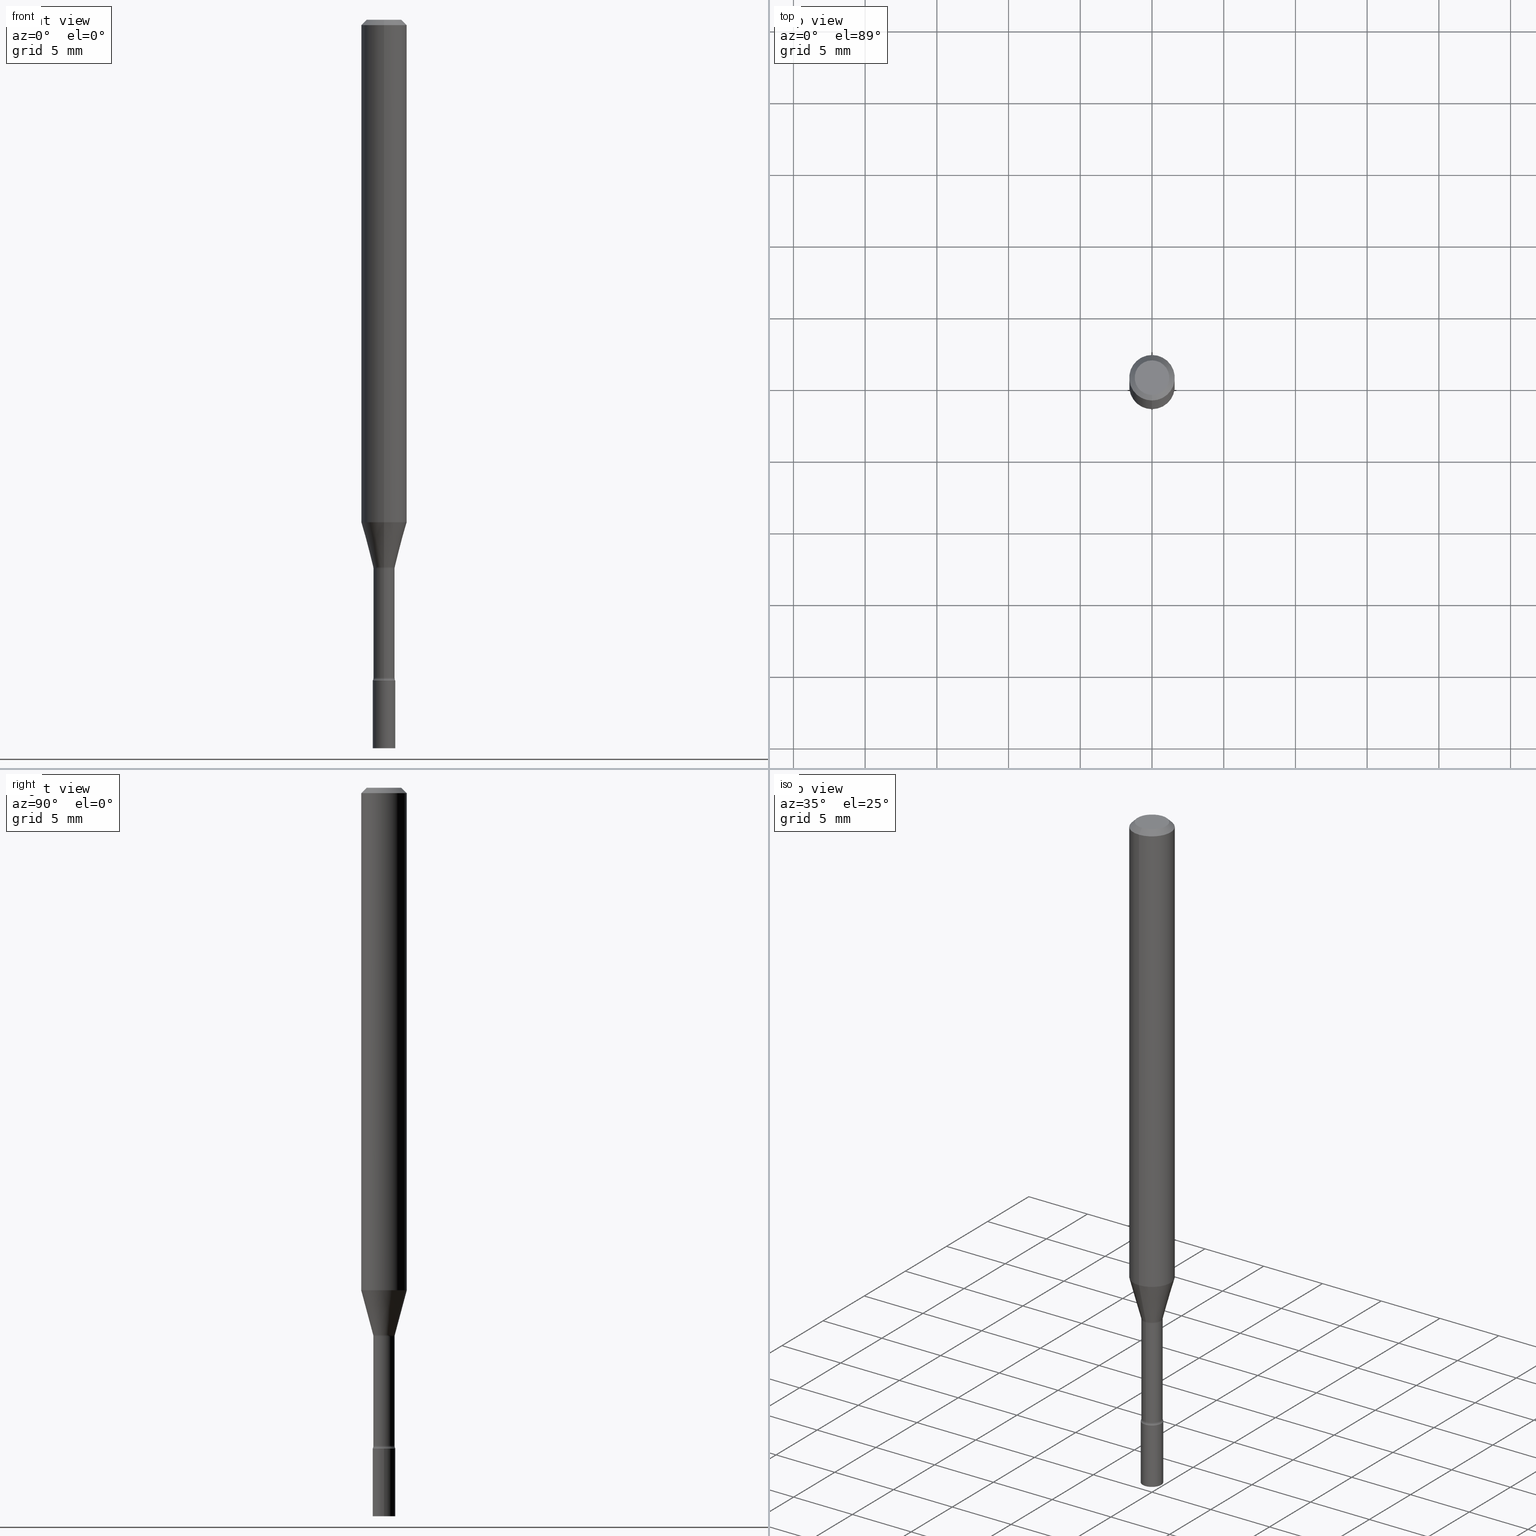
[diagram: canonical four-view strip — front | top / right | iso, engineering-drawing reading convention]
A machine part, canonical four-view strip (front | top / right | iso — engineering-drawing reading convention). The complete STEP part file that produces these views, byte-faithful:
ISO-10303-21;
HEADER;
FILE_DESCRIPTION (( 'STEP AP203' ),
    '1' );
FILE_NAME ('09379.STEP',
    '2024-03-08T23:31:12',
    ( '' ),
    ( '' ),
    'SwSTEP 2.0',
    'SolidWorks 2023',
    '' );
FILE_SCHEMA (( 'CONFIG_CONTROL_DESIGN' ));
ENDSEC;

DATA;
#1 = VERTEX_POINT ( 'NONE', #380 ) ;
#2 = CARTESIAN_POINT ( 'NONE',  ( 3.673319952389542966E-29, -5.244528518811216115E-15, -1.502092501787273271 ) ) ;
#3 = VERTEX_POINT ( 'NONE', #327 ) ;
#4 = DIRECTION ( 'NONE',  ( -6.982962677686265922E-15, -1.000000000000000000, 4.370956789862821150E-15 ) ) ;
#5 = EDGE_CURVE ( 'NONE', #150, #216, #368, .T. ) ;
#6 = CC_DESIGN_PERSON_AND_ORGANIZATION_ASSIGNMENT ( #291, #260, ( #474 ) ) ;
#7 = AXIS2_PLACEMENT_3D ( 'NONE', #347, #103, #153 ) ;
#8 = APPROVAL_PERSON_ORGANIZATION ( #251, #308, #131 ) ;
#9 = ORIENTED_EDGE ( 'NONE', *, *, #220, .T. ) ;
#10 = PLANE ( 'NONE',  #314 ) ;
#11 = EDGE_CURVE ( 'NONE', #339, #500, #39, .T. ) ;
#12 = COORDINATED_UNIVERSAL_TIME_OFFSET ( 5, 0, .BEHIND. ) ;
#13 = DIRECTION ( 'NONE',  ( -2.445468536737133447E-29, 3.491481724708021844E-15, 1.000000000000000000 ) ) ;
#14 = DIRECTION ( 'NONE',  ( -6.982962677686266711E-15, -1.000000000000000000, 0.000000000000000000 ) ) ;
#15 = PERSON_AND_ORGANIZATION ( #504, #512 ) ;
#16 = ORIENTED_EDGE ( 'NONE', *, *, #175, .T. ) ;
#17 = CARTESIAN_POINT ( 'NONE',  ( 4.418432265018427708E-29, -6.308351660805017310E-15, -1.806783525791634704 ) ) ;
#18 = APPROVAL_DATE_TIME ( #185, #43 ) ;
#19 = AXIS2_PLACEMENT_3D ( 'NONE', #476, #253, #396 ) ;
#20 = EDGE_LOOP ( 'NONE', ( #358, #472, #225, #95 ) ) ;
#21 = CARTESIAN_POINT ( 'NONE',  ( 3.682814365644040998E-29, -5.258082867198169507E-15, -1.505974787463811193 ) ) ;
#22 = CARTESIAN_POINT ( 'NONE',  ( -2.071224423039644956E-16, -0.02966111260566922994, -1.502092501787273271 ) ) ;
#23 = CARTESIAN_POINT ( 'NONE',  ( 3.668202805105707334E-31, -5.237222587062043490E-17, -0.01500000000000003067 ) ) ;
#24 = COORDINATED_UNIVERSAL_TIME_OFFSET ( 5, 0, .BEHIND. ) ;
#25 = DIRECTION ( 'NONE',  ( -6.982962677686266711E-15, -1.000000000000000000, 3.491481724708022239E-15 ) ) ;
#26 = CARTESIAN_POINT ( 'NONE',  ( 2.071232074740693438E-16, 0.02915000000000002311, -1.017766922752389249E-16 ) ) ;
#27 = CIRCLE ( 'NONE', #87, 0.06250000000000000000 ) ;
#28 = LOCAL_TIME ( 18, 31, 12.00000000000000000, #24 ) ;
#29 = ADVANCED_FACE ( 'NONE', ( #419 ), #186, .T. ) ;
#30 = LINE ( 'NONE', #418, #362 ) ;
#31 = MANIFOLD_SOLID_BREP ( 'Body-Move/Copy2[2]', #403 ) ;
#32 = CARTESIAN_POINT ( 'NONE',  ( 3.673319952389542966E-29, -5.244528518811216115E-15, -1.502092501787273271 ) ) ;
#33 = DIRECTION ( 'NONE',  ( -2.445468536737133447E-29, 3.491481724708021844E-15, 1.000000000000000000 ) ) ;
#34 = ORIENTED_EDGE ( 'NONE', *, *, #495, .F. ) ;
#35 = VECTOR ( 'NONE', #409, 39.37007874015748143 ) ;
#36 = EDGE_LOOP ( 'NONE', ( #166, #55, #157, #408 ) ) ;
#37 = DIMENSIONAL_EXPONENTS ( 1.000000000000000000, 0.000000000000000000, 0.000000000000000000, 0.000000000000000000, 0.000000000000000000, 0.000000000000000000, 0.000000000000000000 ) ;
#38 = DIRECTION ( 'NONE',  ( -2.445468536737133447E-29, 3.491481724708021844E-15, 1.000000000000000000 ) ) ;
#39 = CIRCLE ( 'NONE', #471, 0.04749999999999999362 ) ;
#40 = CIRCLE ( 'NONE', #192, 0.03099999999999999978 ) ;
#41 = ADVANCED_FACE ( 'NONE', ( #335 ), #340, .F. ) ;
#42 = DIRECTION ( 'NONE',  ( 2.445468536737133447E-29, -3.491481724708021844E-15, -1.000000000000000000 ) ) ;
#43 = APPROVAL ( #376, 'UNSPECIFIED' ) ;
#44 = ORIENTED_EDGE ( 'NONE', *, *, #142, .T. ) ;
#45 = DIRECTION ( 'NONE',  ( 1.000000000000000000, -6.982962677686270655E-15, 0.000000000000000000 ) ) ;
#46 = ORIENTED_EDGE ( 'NONE', *, *, #220, .F. ) ;
#47 = DIRECTION ( 'NONE',  ( -6.982962677686267499E-15, -1.000000000000000000, 0.000000000000000000 ) ) ;
#48 = CIRCLE ( 'NONE', #486, 0.01500000000000001853 ) ;
#49 = ORIENTED_EDGE ( 'NONE', *, *, #73, .T. ) ;
#50 =( CONVERSION_BASED_UNIT ( 'INCH', #197 ) LENGTH_UNIT ( ) NAMED_UNIT ( #37 ) );
#51 = DIRECTION ( 'NONE',  ( -6.982962677686267499E-15, -1.000000000000000000, 0.000000000000000000 ) ) ;
#52 =( NAMED_UNIT ( * ) PLANE_ANGLE_UNIT ( ) SI_UNIT ( $, .RADIAN. ) );
#53 = ADVANCED_FACE ( 'NONE', ( #503 ), #300, .T. ) ;
#54 = LINE ( 'NONE', #334, #205 ) ;
#55 = ORIENTED_EDGE ( 'NONE', *, *, #203, .T. ) ;
#56 = CIRCLE ( 'NONE', #411, 0.02966111260566398414 ) ;
#57 = AXIS2_PLACEMENT_3D ( 'NONE', #459, #255, #125 ) ;
#58 = ORIENTED_EDGE ( 'NONE', *, *, #163, .T. ) ;
#59 = FACE_OUTER_BOUND ( 'NONE', #360, .T. ) ;
#60 = DIRECTION ( 'NONE',  ( -2.445468806185136597E-29, 3.491481338843145583E-15, 1.000000000000000000 ) ) ;
#61 = DIRECTION ( 'NONE',  ( -2.445468536737133447E-29, 3.491481724708021844E-15, 1.000000000000000000 ) ) ;
#62 = CARTESIAN_POINT ( 'NONE',  ( 3.682814365644040998E-29, -5.258082867198169507E-15, -1.505974787463811193 ) ) ;
#63 = FACE_OUTER_BOUND ( 'NONE', #444, .T. ) ;
#64 = ORIENTED_EDGE ( 'NONE', *, *, #175, .F. ) ;
#65 = CIRCLE ( 'NONE', #276, 0.02915000000000004046 ) ;
#66 = EDGE_CURVE ( 'NONE', #183, #211, #385, .T. ) ;
#67 = FACE_OUTER_BOUND ( 'NONE', #439, .T. ) ;
#68 = ORIENTED_EDGE ( 'NONE', *, *, #421, .T. ) ;
#69 = DIRECTION ( 'NONE',  ( -2.438088387897960049E-29, 3.491481338843145188E-15, 1.000000000000000000 ) ) ;
#70 = EDGE_LOOP ( 'NONE', ( #164, #259, #296, #333 ) ) ;
#71 = LOCAL_TIME ( 18, 31, 12.00000000000000000, #460 ) ;
#72 = DIRECTION ( 'NONE',  ( -2.445468536737133447E-29, 3.491481724708021844E-15, 1.000000000000000000 ) ) ;
#73 = EDGE_CURVE ( 'NONE', #150, #413, #56, .T. ) ;
#74 = ORIENTED_EDGE ( 'NONE', *, *, #353, .T. ) ;
#75 = CARTESIAN_POINT ( 'NONE',  ( 0.000000000000000000, 0.000000000000000000, 0.000000000000000000 ) ) ;
#76 = AXIS2_PLACEMENT_3D ( 'NONE', #32, #61, #336 ) ;
#77 = ADVANCED_FACE ( 'NONE', ( #492 ), #506, .F. ) ;
#78 = PRODUCT_DEFINITION_FORMATION_WITH_SPECIFIED_SOURCE ( 'ANY', '', #258, .NOT_KNOWN. ) ;
#79 = ORIENTED_EDGE ( 'NONE', *, *, #491, .T. ) ;
#80 = ADVANCED_FACE ( 'NONE', ( #344 ), #106, .T. ) ;
#81 = ORIENTED_EDGE ( 'NONE', *, *, #345, .F. ) ;
#82 = PERSON_AND_ORGANIZATION ( #504, #512 ) ;
#83 = FACE_OUTER_BOUND ( 'NONE', #487, .T. ) ;
#84 = ORIENTED_EDGE ( 'NONE', *, *, #491, .F. ) ;
#85 = CARTESIAN_POINT ( 'NONE',  ( -0.03099999999999999978, -6.437986665088246838E-15, -2.000000000000000000 ) ) ;
#86 = MECHANICAL_CONTEXT ( 'NONE', #236, 'mechanical' ) ;
#87 = AXIS2_PLACEMENT_3D ( 'NONE', #184, #89, #4 ) ;
#88 = CARTESIAN_POINT ( 'NONE',  ( 0.000000000000000000, 0.000000000000000000, 0.000000000000000000 ) ) ;
#89 = DIRECTION ( 'NONE',  ( -2.445468536737133447E-29, 3.491481724708021844E-15, 1.000000000000000000 ) ) ;
#90 = APPROVAL_DATE_TIME ( #137, #119 ) ;
#91 = CARTESIAN_POINT ( 'NONE',  ( 7.070801462615394512E-46, -1.009523276005824331E-31, -2.891389259928738292E-17 ) ) ;
#92 = CARTESIAN_POINT ( 'NONE',  ( -4.364351673553580935E-16, -0.06250000000000484335, -1.379536105567578108 ) ) ;
#93 = DIRECTION ( 'NONE',  ( 0.000000000000000000, 0.000000000000000000, 1.000000000000000000 ) ) ;
#94 = CARTESIAN_POINT ( 'NONE',  ( 0.03099999999999999978, -2.164718430082742572E-16, 1.511614800496739984E-30 ) ) ;
#95 = ORIENTED_EDGE ( 'NONE', *, *, #270, .F. ) ;
#96 = DIRECTION ( 'NONE',  ( -2.445468536737133447E-29, 3.491481724708021844E-15, 1.000000000000000000 ) ) ;
#97 = SECURITY_CLASSIFICATION_LEVEL ( 'unclassified' ) ;
#98 = ORIENTED_EDGE ( 'NONE', *, *, #73, .F. ) ;
#99 = DIRECTION ( 'NONE',  ( -2.445468536737133447E-29, 3.491481724708021844E-15, 1.000000000000000000 ) ) ;
#100 = AXIS2_PLACEMENT_3D ( 'NONE', #167, #321, #47 ) ;
#101 = LOCAL_TIME ( 18, 31, 12.00000000000000000, #12 ) ;
#102 = CARTESIAN_POINT ( 'NONE',  ( 0.000000000000000000, 0.000000000000000000, 0.000000000000000000 ) ) ;
#103 = DIRECTION ( 'NONE',  ( -2.445468536737133447E-29, 3.491481724708021844E-15, 1.000000000000000000 ) ) ;
#104 = EDGE_CURVE ( 'NONE', #413, #150, #160, .T. ) ;
#105 = VERTEX_POINT ( 'NONE', #332 ) ;
#106 = CYLINDRICAL_SURFACE ( 'NONE', #7, 0.06250000000000000000 ) ;
#107 = DIRECTION ( 'NONE',  ( -2.445468536737133447E-29, 3.491481724708021844E-15, 1.000000000000000000 ) ) ;
#108 = AXIS2_PLACEMENT_3D ( 'NONE', #475, #99, #25 ) ;
#109 = DIRECTION ( 'NONE',  ( -2.445468536737133447E-29, 3.491481724708021844E-15, 1.000000000000000000 ) ) ;
#110 = CARTESIAN_POINT ( 'NONE',  ( 2.202682480856754541E-16, 0.03099999999999368192, -1.813999999999999835 ) ) ;
#111 = EDGE_LOOP ( 'NONE', ( #121, #422 ) ) ;
#112 = CYLINDRICAL_SURFACE ( 'NONE', #151, 0.02915000000000002311 ) ;
#113 = VERTEX_POINT ( 'NONE', #110 ) ;
#114 = FACE_OUTER_BOUND ( 'NONE', #221, .T. ) ;
#115 = ORIENTED_EDGE ( 'NONE', *, *, #228, .T. ) ;
#116 = DIRECTION ( 'NONE',  ( -6.982962677686265922E-15, -1.000000000000000000, 0.000000000000000000 ) ) ;
#117 = DESIGN_CONTEXT ( 'detailed design', #343, 'design' ) ;
#118 = EDGE_CURVE ( 'NONE', #483, #3, #30, .T. ) ;
#119 = APPROVAL ( #285, 'UNSPECIFIED' ) ;
#120 = CC_DESIGN_APPROVAL ( #308, ( #402 ) ) ;
#121 = ORIENTED_EDGE ( 'NONE', *, *, #66, .F. ) ;
#122 = DIRECTION ( 'NONE',  ( -1.000000000000000000, 6.982962677686265922E-15, -4.883557194083112340E-29 ) ) ;
#123 = CALENDAR_DATE ( 2024, 8, 3 ) ;
#124 = PRODUCT_RELATED_PRODUCT_CATEGORY ( 'detail', '', ( #258 ) ) ;
#125 = DIRECTION ( 'NONE',  ( -6.982962677686265922E-15, -1.000000000000000000, 4.370956789862821150E-15 ) ) ;
#126 = UNCERTAINTY_MEASURE_WITH_UNIT (LENGTH_MEASURE( 1.000000000000000082E-05 ), #50, 'distance_accuracy_value', 'NONE');
#127 = DATE_AND_TIME ( #494, #71 ) ;
#128 = CC_DESIGN_DATE_AND_TIME_ASSIGNMENT ( #127, #188, ( #402 ) ) ;
#129 = ORIENTED_EDGE ( 'NONE', *, *, #201, .F. ) ;
#130 = FACE_OUTER_BOUND ( 'NONE', #397, .T. ) ;
#131 = APPROVAL_ROLE ( '' ) ;
#132 = AXIS2_PLACEMENT_3D ( 'NONE', #102, #265, #254 ) ;
#133 = DIRECTION ( 'NONE',  ( -6.982962677686265922E-15, -1.000000000000000000, 3.483106191921935554E-15 ) ) ;
#134 = CONICAL_SURFACE ( 'NONE', #399, 0.06250000000000000000, 0.7853981633974483900 ) ;
#135 = DIRECTION ( 'NONE',  ( -6.982962677686265922E-15, -1.000000000000000000, 0.000000000000000000 ) ) ;
#136 = CARTESIAN_POINT ( 'NONE',  ( 3.682813959862141921E-29, -5.258083448300944094E-15, -1.505974787463811193 ) ) ;
#137 = DATE_AND_TIME ( #123, #101 ) ;
#138 = LINE ( 'NONE', #94, #310 ) ;
#139 = CARTESIAN_POINT ( 'NONE',  ( 4.440892098500961428E-16, 0.06249999999999514971, -1.379536105567578552 ) ) ;
#140 = DIRECTION ( 'NONE',  ( -1.807323732225328562E-15, -0.2588190451025179639, 0.9659258262890690894 ) ) ;
#141 = PERSON_AND_ORGANIZATION ( #504, #512 ) ;
#142 = EDGE_CURVE ( 'NONE', #1, #105, #452, .T. ) ;
#143 = CC_DESIGN_PERSON_AND_ORGANIZATION_ASSIGNMENT ( #82, #297, ( #402 ) ) ;
#144 = FACE_OUTER_BOUND ( 'NONE', #247, .T. ) ;
#145 = CARTESIAN_POINT ( 'NONE',  ( 3.840629472727447874E-16, 0.04749999999999999362, -1.947592745229184119E-16 ) ) ;
#146 = CARTESIAN_POINT ( 'NONE',  ( 4.418432751852640684E-29, -6.308350963630715621E-15, -1.806783525791634704 ) ) ;
#147 = CIRCLE ( 'NONE', #240, 0.02915000000000000577 ) ;
#148 = DIRECTION ( 'NONE',  ( -2.445468536737133447E-29, 3.491481724708021844E-15, 1.000000000000000000 ) ) ;
#149 = DIRECTION ( 'NONE',  ( 1.000000000000000000, -6.982962677686265922E-15, 4.876176775795935793E-29 ) ) ;
#150 = VERTEX_POINT ( 'NONE', #294 ) ;
#151 = AXIS2_PLACEMENT_3D ( 'NONE', #75, #72, #400 ) ;
#152 = CIRCLE ( 'NONE', #100, 0.01500000000000001853 ) ;
#153 = DIRECTION ( 'NONE',  ( -6.982962677686265922E-15, -1.000000000000000000, 3.491481724708021450E-15 ) ) ;
#154 = CARTESIAN_POINT ( 'NONE',  ( -2.035533620545107573E-16, -0.02915000000000635139, -1.806783525791634704 ) ) ;
#155 = ORIENTED_EDGE ( 'NONE', *, *, #203, .F. ) ;
#156 = DIRECTION ( 'NONE',  ( 2.445468536737133447E-29, -3.491481724708021844E-15, -1.000000000000000000 ) ) ;
#157 = ORIENTED_EDGE ( 'NONE', *, *, #425, .T. ) ;
#158 = CC_DESIGN_PERSON_AND_ORGANIZATION_ASSIGNMENT ( #463, #174, ( #258 ) ) ;
#159 = FACE_OUTER_BOUND ( 'NONE', #231, .T. ) ;
#160 = CIRCLE ( 'NONE', #19, 0.02966111260566398414 ) ;
#161 = CYLINDRICAL_SURFACE ( 'NONE', #519, 0.06250000000000000000 ) ;
#162 = AXIS2_PLACEMENT_3D ( 'NONE', #484, #309, #346 ) ;
#163 = EDGE_CURVE ( 'NONE', #216, #1, #54, .T. ) ;
#164 = ORIENTED_EDGE ( 'NONE', *, *, #286, .T. ) ;
#165 = FACE_OUTER_BOUND ( 'NONE', #283, .T. ) ;
#166 = ORIENTED_EDGE ( 'NONE', *, *, #228, .F. ) ;
#167 = CARTESIAN_POINT ( 'NONE',  ( -3.082978022198118430E-16, -0.04415000000000526142, -1.505974787463810971 ) ) ;
#168 = CIRCLE ( 'NONE', #190, 0.01500000000000001853 ) ;
#169 = CONICAL_SURFACE ( 'NONE', #467, 0.06250000000000000000, 0.7853981633974483900 ) ;
#170 = FACE_OUTER_BOUND ( 'NONE', #406, .T. ) ;
#171 = DIRECTION ( 'NONE',  ( 4.937700262164548042E-15, 0.7071067811865451302, -0.7071067811865499042 ) ) ;
#172 = ORIENTED_EDGE ( 'NONE', *, *, #495, .T. ) ;
#173 = CARTESIAN_POINT ( 'NONE',  ( 0.03099999999999999978, -6.550018991669739348E-15, -1.813999999999999835 ) ) ;
#174 = PERSON_AND_ORGANIZATION_ROLE ( 'design_owner' ) ;
#175 = EDGE_CURVE ( 'NONE', #183, #305, #138, .T. ) ;
#176 = DIRECTION ( 'NONE',  ( -6.982962677686265922E-15, -1.000000000000000000, 3.491481724708021844E-15 ) ) ;
#177 = CALENDAR_DATE ( 2024, 8, 3 ) ;
#178 = ORIENTED_EDGE ( 'NONE', *, *, #235, .F. ) ;
#179 = DIRECTION ( 'NONE',  ( -2.445468536737133447E-29, 3.491481724708021844E-15, 1.000000000000000000 ) ) ;
#180 = APPROVAL_DATE_TIME ( #498, #308 ) ;
#181 = VECTOR ( 'NONE', #171, 39.37007874015748143 ) ;
#182 = ADVANCED_FACE ( 'NONE', ( #144 ), #112, .T. ) ;
#183 = VERTEX_POINT ( 'NONE', #518 ) ;
#184 = CARTESIAN_POINT ( 'NONE',  ( 3.373612141458389252E-29, -4.816625101164076707E-15, -1.379536105567578330 ) ) ;
#185 = DATE_AND_TIME ( #177, #28 ) ;
#186 = CYLINDRICAL_SURFACE ( 'NONE', #398, 0.03099999999999999978 ) ;
#187 = ADVANCED_FACE ( 'NONE', ( #208 ), #161, .T. ) ;
#188 = DATE_TIME_ROLE ( 'creation_date' ) ;
#189 = ORIENTED_EDGE ( 'NONE', *, *, #379, .F. ) ;
#190 = AXIS2_PLACEMENT_3D ( 'NONE', #290, #488, #219 ) ;
#191 = DIRECTION ( 'NONE',  ( -2.445468536737133447E-29, 3.491481724708022239E-15, 1.000000000000000000 ) ) ;
#192 = AXIS2_PLACEMENT_3D ( 'NONE', #349, #306, #432 ) ;
#193 = DIRECTION ( 'NONE',  ( 6.982962677686265922E-15, 1.000000000000000000, -3.491481724708022239E-15 ) ) ;
#194 = DIRECTION ( 'NONE',  ( 1.000000000000000000, -6.982962677686270655E-15, 0.000000000000000000 ) ) ;
#195 = ORIENTED_EDGE ( 'NONE', *, *, #252, .F. ) ;
#196 = DIRECTION ( 'NONE',  ( -2.445468806185136597E-29, 3.491481338843145583E-15, 1.000000000000000000 ) ) ;
#197 = LENGTH_MEASURE_WITH_UNIT ( LENGTH_MEASURE( 0.02539999999999999897 ), #451 );
#198 = CIRCLE ( 'NONE', #485, 0.04749999999999999362 ) ;
#199 = ADVANCED_FACE ( 'NONE', ( #114 ), #440, .T. ) ;
#200 = AXIS2_PLACEMENT_3D ( 'NONE', #375, #122, #51 ) ;
#201 = EDGE_CURVE ( 'NONE', #500, #339, #198, .T. ) ;
#202 = ORIENTED_EDGE ( 'NONE', *, *, #213, .F. ) ;
#203 = EDGE_CURVE ( 'NONE', #434, #113, #168, .T. ) ;
#204 = CARTESIAN_POINT ( 'NONE',  ( 4.364351673553919652E-16, 0.06249999999999995143, -0.01500000000000024751 ) ) ;
#205 = VECTOR ( 'NONE', #499, 39.37007874015748143 ) ;
#206 = VECTOR ( 'NONE', #191, 39.37007874015748143 ) ;
#207 = ORIENTED_EDGE ( 'NONE', *, *, #5, .F. ) ;
#208 = FACE_OUTER_BOUND ( 'NONE', #433, .T. ) ;
#209 = ORIENTED_EDGE ( 'NONE', *, *, #282, .T. ) ;
#210 = DIRECTION ( 'NONE',  ( -2.445468806185136597E-29, 3.491481338843145583E-15, 1.000000000000000000 ) ) ;
#211 = VERTEX_POINT ( 'NONE', #85 ) ;
#212 = DIRECTION ( 'NONE',  ( -6.982962677686265922E-15, -1.000000000000000000, 0.000000000000000000 ) ) ;
#213 = EDGE_CURVE ( 'NONE', #211, #405, #369, .T. ) ;
#214 = PERSON_AND_ORGANIZATION ( #504, #512 ) ;
#215 = CIRCLE ( 'NONE', #507, 0.03099999999999999978 ) ;
#216 = VERTEX_POINT ( 'NONE', #92 ) ;
#217 = CARTESIAN_POINT ( 'NONE',  ( 4.436080414419837365E-29, -6.333547148661465016E-15, -1.813999999999999835 ) ) ;
#218 = DIRECTION ( 'NONE',  ( 1.000000000000000000, -6.982962677686270655E-15, 0.000000000000000000 ) ) ;
#219 = DIRECTION ( 'NONE',  ( 7.105427357601001859E-15, 1.000000000000000000, 0.000000000000000000 ) ) ;
#220 = EDGE_CURVE ( 'NONE', #500, #1, #501, .T. ) ;
#221 = EDGE_LOOP ( 'NONE', ( #49, #364, #465, #207 ) ) ;
#222 = CALENDAR_DATE ( 2024, 8, 3 ) ;
#223 = AXIS2_PLACEMENT_3D ( 'NONE', #373, #93, #244 ) ;
#224 = AXIS2_PLACEMENT_3D ( 'NONE', #470, #69, #149 ) ;
#225 = ORIENTED_EDGE ( 'NONE', *, *, #5, .T. ) ;
#226 = CARTESIAN_POINT ( 'NONE',  ( 3.673319952389542966E-29, -5.244528518811216115E-15, -1.502092501787273271 ) ) ;
#227 = LINE ( 'NONE', #229, #430 ) ;
#228 = EDGE_CURVE ( 'NONE', #434, #483, #301, .T. ) ;
#229 = CARTESIAN_POINT ( 'NONE',  ( 2.107548809652055165E-16, 0.02966111260565873833, -1.502092501787273271 ) ) ;
#230 = CIRCLE ( 'NONE', #386, 0.02915000000000000577 ) ;
#231 = EDGE_LOOP ( 'NONE', ( #209, #79 ) ) ;
#232 = EDGE_CURVE ( 'NONE', #483, #320, #331, .T. ) ;
#233 = ORIENTED_EDGE ( 'NONE', *, *, #437, .T. ) ;
#234 = AXIS2_PLACEMENT_3D ( 'NONE', #426, #60, #218 ) ;
#235 = EDGE_CURVE ( 'NONE', #320, #113, #302, .T. ) ;
#236 = APPLICATION_CONTEXT ( 'configuration controlled 3d designs of mechanical parts and assemblies' ) ;
#237 = CC_DESIGN_PERSON_AND_ORGANIZATION_ASSIGNMENT ( #141, #490, ( #78 ) ) ;
#238 = AXIS2_PLACEMENT_3D ( 'NONE', #62, #469, #387 ) ;
#239 = ORIENTED_EDGE ( 'NONE', *, *, #118, .T. ) ;
#240 = AXIS2_PLACEMENT_3D ( 'NONE', #517, #107, #391 ) ;
#241 = PLANE ( 'NONE',  #162 ) ;
#242 = ORIENTED_EDGE ( 'NONE', *, *, #235, .T. ) ;
#243 = ORIENTED_EDGE ( 'NONE', *, *, #425, .F. ) ;
#244 = DIRECTION ( 'NONE',  ( 1.000000000000000000, 0.000000000000000000, 0.000000000000000000 ) ) ;
#245 = CARTESIAN_POINT ( 'NONE',  ( 3.668202805105707334E-31, -5.237222587062043490E-17, -0.01500000000000003067 ) ) ;
#246 = ADVANCED_FACE ( 'NONE', ( #130 ), #356, .F. ) ;
#247 = EDGE_LOOP ( 'NONE', ( #268, #115, #239, #449 ) ) ;
#248 = DIRECTION ( 'NONE',  ( -1.000000000000000000, 6.982962677686265922E-15, -4.876176775795935793E-29 ) ) ;
#249 = CIRCLE ( 'NONE', #57, 0.06250000000000000000 ) ;
#250 = ORIENTED_EDGE ( 'NONE', *, *, #118, .F. ) ;
#251 = PERSON_AND_ORGANIZATION ( #504, #512 ) ;
#252 = EDGE_CURVE ( 'NONE', #413, #287, #48, .T. ) ;
#253 = DIRECTION ( 'NONE',  ( -2.445468536737133447E-29, 3.491481724708021844E-15, 1.000000000000000000 ) ) ;
#254 = DIRECTION ( 'NONE',  ( 1.000000000000000000, -6.982962677686266711E-15, 4.876176775795935232E-29 ) ) ;
#255 = DIRECTION ( 'NONE',  ( -2.445468536737133447E-29, 3.491481724708021844E-15, 1.000000000000000000 ) ) ;
#256 = CARTESIAN_POINT ( 'NONE',  ( 2.136957277798946103E-16, 0.02914999999999373301, -1.806783525791634704 ) ) ;
#257 =( NAMED_UNIT ( * ) SI_UNIT ( $, .STERADIAN. ) SOLID_ANGLE_UNIT ( ) );
#258 = PRODUCT ( '09379', '09379', '', ( #86 ) ) ;
#259 = ORIENTED_EDGE ( 'NONE', *, *, #278, .T. ) ;
#260 = PERSON_AND_ORGANIZATION_ROLE ( 'classification_officer' ) ;
#261 = ORIENTED_EDGE ( 'NONE', *, *, #213, .T. ) ;
#262 = AXIS2_PLACEMENT_3D ( 'NONE', #21, #284, #176 ) ;
#263 = CARTESIAN_POINT ( 'NONE',  ( -2.164718430082299331E-16, -0.03100000000000634887, -1.813999999999999835 ) ) ;
#264 = PLANE ( 'NONE',  #271 ) ;
#265 = DIRECTION ( 'NONE',  ( -2.445468806185136597E-29, 3.491481338843145583E-15, 1.000000000000000000 ) ) ;
#266 = CARTESIAN_POINT ( 'NONE',  ( 3.274220454076509529E-16, 0.02966111260565873833, -1.502092501787273271 ) ) ;
#267 = EDGE_CURVE ( 'NONE', #287, #3, #230, .T. ) ;
#268 = ORIENTED_EDGE ( 'NONE', *, *, #421, .F. ) ;
#269 = CARTESIAN_POINT ( 'NONE',  ( 4.436079925641159659E-29, -6.333547848620351038E-15, -1.813999999999999835 ) ) ;
#270 = EDGE_CURVE ( 'NONE', #468, #216, #249, .T. ) ;
#271 = AXIS2_PLACEMENT_3D ( 'NONE', #509, #388, #193 ) ;
#272 = DIRECTION ( 'NONE',  ( 1.839019923739598738E-15, 0.2588190451025247363, 0.9659258262890673130 ) ) ;
#273 = CARTESIAN_POINT ( 'NONE',  ( 3.668202805105707334E-31, -5.237222587062043490E-17, -0.01500000000000003067 ) ) ;
#274 = ORIENTED_EDGE ( 'NONE', *, *, #66, .T. ) ;
#275 = CLOSED_SHELL ( 'NONE', ( #53, #508, #29, #313 ) ) ;
#276 = AXIS2_PLACEMENT_3D ( 'NONE', #350, #109, #510 ) ;
#277 = CARTESIAN_POINT ( 'NONE',  ( -3.773273898774340269E-16, -0.04749999999999999362, 1.369314893243436584E-16 ) ) ;
#278 = EDGE_CURVE ( 'NONE', #468, #105, #420, .T. ) ;
#279 = ORIENTED_EDGE ( 'NONE', *, *, #282, .F. ) ;
#280 = LOCAL_TIME ( 18, 31, 12.00000000000000000, #330 ) ;
#281 = EDGE_LOOP ( 'NONE', ( #274, #261, #279, #64 ) ) ;
#282 = EDGE_CURVE ( 'NONE', #305, #405, #520, .T. ) ;
#283 = EDGE_LOOP ( 'NONE', ( #155, #189, #289, #242 ) ) ;
#284 = DIRECTION ( 'NONE',  ( -2.445468536737133447E-29, 3.491481724708021844E-15, 1.000000000000000000 ) ) ;
#285 = APPROVAL_STATUS ( 'not_yet_approved' ) ;
#286 = EDGE_CURVE ( 'NONE', #216, #468, #27, .T. ) ;
#287 = VERTEX_POINT ( 'NONE', #288 ) ;
#288 = CARTESIAN_POINT ( 'NONE',  ( 2.071232074741134953E-16, 0.02914999999999474956, -1.505974787463811193 ) ) ;
#289 = ORIENTED_EDGE ( 'NONE', *, *, #232, .T. ) ;
#290 = CARTESIAN_POINT ( 'NONE',  ( 3.137046178381287658E-16, 0.04414999999999374980, -1.806783525791634926 ) ) ;
#291 = PERSON_AND_ORGANIZATION ( #504, #512 ) ;
#292 = TOROIDAL_SURFACE ( 'NONE', #412, 0.04415000000000005725, 0.01500000000000001853 ) ;
#293 = LOCAL_TIME ( 18, 31, 12.00000000000000000, #323 ) ;
#294 = CARTESIAN_POINT ( 'NONE',  ( -2.071224423039644956E-16, -0.02966111260566922994, -1.502092501787273271 ) ) ;
#295 = DIRECTION ( 'NONE',  ( 6.982962677686265922E-15, 1.000000000000000000, -3.483106191921935554E-15 ) ) ;
#296 = ORIENTED_EDGE ( 'NONE', *, *, #142, .F. ) ;
#297 = PERSON_AND_ORGANIZATION_ROLE ( 'creator' ) ;
#298 = DIRECTION ( 'NONE',  ( -6.982962677686266711E-15, -1.000000000000000000, 3.491481724708022633E-15 ) ) ;
#299 = APPROVAL_ROLE ( '' ) ;
#300 = CYLINDRICAL_SURFACE ( 'NONE', #132, 0.03099999999999999978 ) ;
#301 = CIRCLE ( 'NONE', #453, 0.02915000000000004046 ) ;
#302 = CIRCLE ( 'NONE', #363, 0.03099999999999999978 ) ;
#303 = EDGE_CURVE ( 'NONE', #150, #3, #152, .T. ) ;
#304 = CARTESIAN_POINT ( 'NONE',  ( 3.668202805105707334E-31, -5.237222587062043490E-17, -0.01500000000000003067 ) ) ;
#305 = VERTEX_POINT ( 'NONE', #173 ) ;
#306 = DIRECTION ( 'NONE',  ( -2.445468806185136597E-29, 3.491481338843145583E-15, 1.000000000000000000 ) ) ;
#307 = DIRECTION ( 'NONE',  ( -6.982962677686265922E-15, -1.000000000000000000, 3.483106191921935554E-15 ) ) ;
#308 = APPROVAL ( #382, 'UNSPECIFIED' ) ;
#309 = DIRECTION ( 'NONE',  ( -2.445468536737133167E-29, 3.491481724708022239E-15, 1.000000000000000000 ) ) ;
#310 = VECTOR ( 'NONE', #502, 39.37007874015748143 ) ;
#311 = ORIENTED_EDGE ( 'NONE', *, *, #11, .T. ) ;
#312 = ORIENTED_EDGE ( 'NONE', *, *, #267, .T. ) ;
#313 = ADVANCED_FACE ( 'NONE', ( #365 ), #10, .T. ) ;
#314 = AXIS2_PLACEMENT_3D ( 'NONE', #322, #450, #248 ) ;
#315 = CARTESIAN_POINT ( 'NONE',  ( 0.000000000000000000, 0.000000000000000000, 0.000000000000000000 ) ) ;
#316 = ADVANCED_FACE ( 'NONE', ( #59 ), #134, .T. ) ;
#317 = ORIENTED_EDGE ( 'NONE', *, *, #437, .F. ) ;
#318 = DIRECTION ( 'NONE',  ( -2.445468536737133447E-29, 3.491481724708021844E-15, 1.000000000000000000 ) ) ;
#319 = ADVANCED_FACE ( 'NONE', ( #170 ), #241, .F. ) ;
#320 = VERTEX_POINT ( 'NONE', #263 ) ;
#321 = DIRECTION ( 'NONE',  ( -1.000000000000000000, 6.982962677686265922E-15, -4.883557194083112340E-29 ) ) ;
#322 = CARTESIAN_POINT ( 'NONE',  ( 2.164718430083231419E-16, 0.03099999999999301578, -2.000000000000000000 ) ) ;
#323 = COORDINATED_UNIVERSAL_TIME_OFFSET ( 5, 0, .BEHIND. ) ;
#324 = DIRECTION ( 'NONE',  ( -6.982962677686265922E-15, -1.000000000000000000, 3.491481724708021844E-15 ) ) ;
#325 = DIRECTION ( 'NONE',  ( 7.105427357601001859E-15, 1.000000000000000000, 0.000000000000000000 ) ) ;
#326 = PERSON_AND_ORGANIZATION ( #504, #512 ) ;
#327 = CARTESIAN_POINT ( 'NONE',  ( -2.035533620545178817E-16, -0.02915000000000526545, -1.505974787463811193 ) ) ;
#328 = DIRECTION ( 'NONE',  ( -2.445468536737133447E-29, 3.491481724708021844E-15, 1.000000000000000000 ) ) ;
#329 = DIRECTION ( 'NONE',  ( -6.982962677686265922E-15, -1.000000000000000000, 0.000000000000000000 ) ) ;
#330 = COORDINATED_UNIVERSAL_TIME_OFFSET ( 5, 0, .BEHIND. ) ;
#331 = CIRCLE ( 'NONE', #200, 0.01500000000000001853 ) ;
#332 = CARTESIAN_POINT ( 'NONE',  ( 4.440892098500965372E-16, 0.06249999999999995837, -0.01500000000000024751 ) ) ;
#333 = ORIENTED_EDGE ( 'NONE', *, *, #163, .F. ) ;
#334 = CARTESIAN_POINT ( 'NONE',  ( -4.364351673553916201E-16, -0.06250000000000000000, 2.182176077942513406E-16 ) ) ;
#335 = FACE_OUTER_BOUND ( 'NONE', #36, .T. ) ;
#336 = DIRECTION ( 'NONE',  ( -6.982962677686265922E-15, -1.000000000000000000, 0.000000000000000000 ) ) ;
#337 = CALENDAR_DATE ( 2024, 8, 3 ) ;
#338 = DIRECTION ( 'NONE',  ( -2.445468536737133447E-29, 3.491481724708021844E-15, 1.000000000000000000 ) ) ;
#339 = VERTEX_POINT ( 'NONE', #145 ) ;
#340 = TOROIDAL_SURFACE ( 'NONE', #355, 0.04415000000000005725, 0.01500000000000001853 ) ;
#341 = ADVANCED_FACE ( 'NONE', ( #67 ), #394, .T. ) ;
#342 = AXIS2_PLACEMENT_3D ( 'NONE', #269, #428, #329 ) ;
#343 = APPLICATION_CONTEXT ( 'configuration controlled 3d designs of mechanical parts and assemblies' ) ;
#344 = FACE_OUTER_BOUND ( 'NONE', #70, .T. ) ;
#345 = EDGE_CURVE ( 'NONE', #105, #1, #436, .T. ) ;
#346 = DIRECTION ( 'NONE',  ( -6.982962677686265922E-15, -1.000000000000000000, 3.491481724708022239E-15 ) ) ;
#347 = CARTESIAN_POINT ( 'NONE',  ( 0.000000000000000000, 0.000000000000000000, 0.000000000000000000 ) ) ;
#348 = AXIS2_PLACEMENT_3D ( 'NONE', #2, #318, #116 ) ;
#349 = CARTESIAN_POINT ( 'NONE',  ( 4.436080414419837365E-29, -6.333547148661465016E-15, -1.813999999999999835 ) ) ;
#350 = CARTESIAN_POINT ( 'NONE',  ( 4.418432265018427708E-29, -6.308351660805017310E-15, -1.806783525791634704 ) ) ;
#351 = APPROVAL_PERSON_ORGANIZATION ( #214, #119, #367 ) ;
#352 = EDGE_LOOP ( 'NONE', ( #202, #74, #16, #84 ) ) ;
#353 = EDGE_CURVE ( 'NONE', #211, #183, #215, .T. ) ;
#354 = ADVANCED_BREP_SHAPE_REPRESENTATION ( '09379', ( #381, #31, #223 ), #377 ) ;
#355 = AXIS2_PLACEMENT_3D ( 'NONE', #146, #427, #324 ) ;
#356 = TOROIDAL_SURFACE ( 'NONE', #262, 0.04415000000000000174, 0.01500000000000001853 ) ;
#357 = LINE ( 'NONE', #204, #181 ) ;
#358 = ORIENTED_EDGE ( 'NONE', *, *, #416, .F. ) ;
#359 = DIRECTION ( 'NONE',  ( -6.982962677686265922E-15, -1.000000000000000000, 3.491481724708021450E-15 ) ) ;
#360 = EDGE_LOOP ( 'NONE', ( #46, #374, #172, #478 ) ) ;
#361 = DIRECTION ( 'NONE',  ( -6.982962677686266711E-15, -1.000000000000000000, 0.000000000000000000 ) ) ;
#362 = VECTOR ( 'NONE', #392, 39.37007874015748143 ) ;
#363 = AXIS2_PLACEMENT_3D ( 'NONE', #455, #179, #212 ) ;
#364 = ORIENTED_EDGE ( 'NONE', *, *, #416, .T. ) ;
#365 = FACE_OUTER_BOUND ( 'NONE', #111, .T. ) ;
#366 = CC_DESIGN_APPROVAL ( #43, ( #78 ) ) ;
#367 = APPROVAL_ROLE ( '' ) ;
#368 = LINE ( 'NONE', #22, #429 ) ;
#369 = LINE ( 'NONE', #415, #480 ) ;
#370 = APPLICATION_PROTOCOL_DEFINITION ( 'international standard', 'config_control_design', 1994, #236 ) ;
#371 = ORIENTED_EDGE ( 'NONE', *, *, #252, .T. ) ;
#372 = CARTESIAN_POINT ( 'NONE',  ( -4.287811248607203282E-16, -0.06250000000000005551, -0.01499999999999981209 ) ) ;
#373 = CARTESIAN_POINT ( 'NONE',  ( 0.000000000000000000, 0.000000000000000000, 0.000000000000000000 ) ) ;
#374 = ORIENTED_EDGE ( 'NONE', *, *, #11, .F. ) ;
#375 = CARTESIAN_POINT ( 'NONE',  ( -3.082978022198048911E-16, -0.04415000000000637165, -1.806783525791634482 ) ) ;
#376 = APPROVAL_STATUS ( 'not_yet_approved' ) ;
#377 =( GEOMETRIC_REPRESENTATION_CONTEXT ( 3 ) GLOBAL_UNCERTAINTY_ASSIGNED_CONTEXT ( ( #126 ) ) GLOBAL_UNIT_ASSIGNED_CONTEXT ( ( #50, #52, #257 ) ) REPRESENTATION_CONTEXT ( 'NONE', 'WORKASPACE' ) );
#378 = CC_DESIGN_SECURITY_CLASSIFICATION ( #474, ( #78 ) ) ;
#379 = EDGE_CURVE ( 'NONE', #483, #434, #65, .T. ) ;
#380 = CARTESIAN_POINT ( 'NONE',  ( -4.364351673553912750E-16, -0.06250000000000005551, -0.01499999999999981209 ) ) ;
#381 = MANIFOLD_SOLID_BREP ( 'Body-Move/Copy2[1]', #275 ) ;
#382 = APPROVAL_STATUS ( 'not_yet_approved' ) ;
#383 = EDGE_LOOP ( 'NONE', ( #393, #371, #312, #511 ) ) ;
#384 = LINE ( 'NONE', #26, #206 ) ;
#385 = CIRCLE ( 'NONE', #234, 0.03099999999999999978 ) ;
#386 = AXIS2_PLACEMENT_3D ( 'NONE', #136, #328, #361 ) ;
#387 = DIRECTION ( 'NONE',  ( -6.982962677686265922E-15, -1.000000000000000000, 3.491481724708021844E-15 ) ) ;
#388 = DIRECTION ( 'NONE',  ( 2.445468536737133167E-29, -3.491481724708022239E-15, -1.000000000000000000 ) ) ;
#389 = PRODUCT_DEFINITION_SHAPE ( 'NONE', 'NONE',  #402 ) ;
#390 = CARTESIAN_POINT ( 'NONE',  ( 4.890937612370273194E-29, -6.982962677686291165E-15, -2.000000000000000000 ) ) ;
#391 = DIRECTION ( 'NONE',  ( -6.982962677686266711E-15, -1.000000000000000000, 0.000000000000000000 ) ) ;
#392 = DIRECTION ( 'NONE',  ( -2.445468536737133447E-29, 3.491481724708022239E-15, 1.000000000000000000 ) ) ;
#393 = ORIENTED_EDGE ( 'NONE', *, *, #104, .F. ) ;
#394 = CYLINDRICAL_SURFACE ( 'NONE', #108, 0.02915000000000002311 ) ;
#395 = FACE_OUTER_BOUND ( 'NONE', #20, .T. ) ;
#396 = DIRECTION ( 'NONE',  ( -6.982962677686265922E-15, -1.000000000000000000, 0.000000000000000000 ) ) ;
#397 = EDGE_LOOP ( 'NONE', ( #195, #98, #442, #233 ) ) ;
#398 = AXIS2_PLACEMENT_3D ( 'NONE', #88, #458, #496 ) ;
#399 = AXIS2_PLACEMENT_3D ( 'NONE', #23, #42, #401 ) ;
#400 = DIRECTION ( 'NONE',  ( -6.982962677686266711E-15, -1.000000000000000000, 3.491481724708022239E-15 ) ) ;
#401 = DIRECTION ( 'NONE',  ( 6.982962677686265922E-15, 1.000000000000000000, -3.483106191921935554E-15 ) ) ;
#402 = PRODUCT_DEFINITION ( 'UNKNOWN', '', #78, #117 ) ;
#403 = CLOSED_SHELL ( 'NONE', ( #77, #341, #41, #461, #80, #199, #514, #187, #316, #479, #319, #448, #182, #246 ) ) ;
#404 = CIRCLE ( 'NONE', #342, 0.03099999999999999978 ) ;
#405 = VERTEX_POINT ( 'NONE', #505 ) ;
#406 = EDGE_LOOP ( 'NONE', ( #178, #243 ) ) ;
#407 = CARTESIAN_POINT ( 'NONE',  ( 3.137046178381209758E-16, 0.04414999999999474206, -1.505974787463811415 ) ) ;
#408 = ORIENTED_EDGE ( 'NONE', *, *, #232, .F. ) ;
#409 = DIRECTION ( 'NONE',  ( -2.445468536737133447E-29, 3.491481724708022239E-15, 1.000000000000000000 ) ) ;
#410 = DATE_TIME_ROLE ( 'classification_date' ) ;
#411 = AXIS2_PLACEMENT_3D ( 'NONE', #226, #13, #135 ) ;
#412 = AXIS2_PLACEMENT_3D ( 'NONE', #447, #338, #516 ) ;
#413 = VERTEX_POINT ( 'NONE', #266 ) ;
#414 = DIRECTION ( 'NONE',  ( -6.982962677686266711E-15, -1.000000000000000000, 3.491481724708022633E-15 ) ) ;
#415 = CARTESIAN_POINT ( 'NONE',  ( -0.03099999999999999978, 2.202682480856310560E-16, -1.524869877979020612E-30 ) ) ;
#416 = EDGE_CURVE ( 'NONE', #413, #468, #227, .T. ) ;
#417 = PERSON_AND_ORGANIZATION_ROLE ( 'design_supplier' ) ;
#418 = CARTESIAN_POINT ( 'NONE',  ( -2.035533620545548349E-16, -0.02915000000000002311, 1.017766922752389249E-16 ) ) ;
#419 = FACE_OUTER_BOUND ( 'NONE', #352, .T. ) ;
#420 = LINE ( 'NONE', #445, #35 ) ;
#421 = EDGE_CURVE ( 'NONE', #434, #287, #384, .T. ) ;
#422 = ORIENTED_EDGE ( 'NONE', *, *, #353, .F. ) ;
#423 = AXIS2_PLACEMENT_3D ( 'NONE', #273, #33, #133 ) ;
#424 = APPLICATION_PROTOCOL_DEFINITION ( 'international standard', 'config_control_design', 1994, #343 ) ;
#425 = EDGE_CURVE ( 'NONE', #113, #320, #404, .T. ) ;
#426 = CARTESIAN_POINT ( 'NONE',  ( 4.890937612370273194E-29, -6.982962677686291165E-15, -2.000000000000000000 ) ) ;
#427 = DIRECTION ( 'NONE',  ( -2.445468536737133447E-29, 3.491481724708021844E-15, 1.000000000000000000 ) ) ;
#428 = DIRECTION ( 'NONE',  ( -2.445468536737133447E-29, 3.491481724708021844E-15, 1.000000000000000000 ) ) ;
#429 = VECTOR ( 'NONE', #140, 39.37007874015748854 ) ;
#430 = VECTOR ( 'NONE', #272, 39.37007874015748854 ) ;
#431 = CC_DESIGN_APPROVAL ( #119, ( #474 ) ) ;
#432 = DIRECTION ( 'NONE',  ( 1.000000000000000000, -6.982962677686270655E-15, 0.000000000000000000 ) ) ;
#433 = EDGE_LOOP ( 'NONE', ( #464, #477, #58, #81 ) ) ;
#434 = VERTEX_POINT ( 'NONE', #256 ) ;
#435 = CC_DESIGN_DATE_AND_TIME_ASSIGNMENT ( #457, #410, ( #474 ) ) ;
#436 = CIRCLE ( 'NONE', #441, 0.06250000000000000000 ) ;
#437 = EDGE_CURVE ( 'NONE', #3, #287, #147, .T. ) ;
#438 = CC_DESIGN_PERSON_AND_ORGANIZATION_ASSIGNMENT ( #326, #417, ( #78 ) ) ;
#439 = EDGE_LOOP ( 'NONE', ( #462, #68, #317, #250 ) ) ;
#440 = CONICAL_SURFACE ( 'NONE', #348, 0.02966111260566398414, 0.2617993877991500740 ) ;
#441 = AXIS2_PLACEMENT_3D ( 'NONE', #304, #148, #307 ) ;
#442 = ORIENTED_EDGE ( 'NONE', *, *, #303, .T. ) ;
#443 = DIRECTION ( 'NONE',  ( -2.445468536737133447E-29, 3.491481724708021844E-15, 1.000000000000000000 ) ) ;
#444 = EDGE_LOOP ( 'NONE', ( #311, #515 ) ) ;
#445 = CARTESIAN_POINT ( 'NONE',  ( 4.440892098500625669E-16, 0.06250000000000000000, -2.182176077942513406E-16 ) ) ;
#446 = SHAPE_DEFINITION_REPRESENTATION ( #389, #354 ) ;
#447 = CARTESIAN_POINT ( 'NONE',  ( 4.418432751852640684E-29, -6.308350963630715621E-15, -1.806783525791634704 ) ) ;
#448 = ADVANCED_FACE ( 'NONE', ( #165 ), #292, .F. ) ;
#449 = ORIENTED_EDGE ( 'NONE', *, *, #267, .F. ) ;
#450 = DIRECTION ( 'NONE',  ( 2.438088387897960049E-29, -3.491481338843145188E-15, -1.000000000000000000 ) ) ;
#451 =( LENGTH_UNIT ( ) NAMED_UNIT ( * ) SI_UNIT ( $, .METRE. ) );
#452 = CIRCLE ( 'NONE', #423, 0.06250000000000000000 ) ;
#453 = AXIS2_PLACEMENT_3D ( 'NONE', #17, #96, #14 ) ;
#454 = DIRECTION ( 'NONE',  ( -2.445468536737133447E-29, 3.491481724708021844E-15, 1.000000000000000000 ) ) ;
#455 = CARTESIAN_POINT ( 'NONE',  ( 4.436079925641159659E-29, -6.333547848620351038E-15, -1.813999999999999835 ) ) ;
#456 = APPROVAL_PERSON_ORGANIZATION ( #15, #43, #299 ) ;
#457 = DATE_AND_TIME ( #337, #293 ) ;
#458 = DIRECTION ( 'NONE',  ( -2.445468806185136597E-29, 3.491481338843145583E-15, 1.000000000000000000 ) ) ;
#459 = CARTESIAN_POINT ( 'NONE',  ( 3.373612141458389252E-29, -4.816625101164076707E-15, -1.379536105567578330 ) ) ;
#460 = COORDINATED_UNIVERSAL_TIME_OFFSET ( 5, 0, .BEHIND. ) ;
#461 = ADVANCED_FACE ( 'NONE', ( #83 ), #169, .T. ) ;
#462 = ORIENTED_EDGE ( 'NONE', *, *, #379, .T. ) ;
#463 = PERSON_AND_ORGANIZATION ( #504, #512 ) ;
#464 = ORIENTED_EDGE ( 'NONE', *, *, #278, .F. ) ;
#465 = ORIENTED_EDGE ( 'NONE', *, *, #286, .F. ) ;
#466 = VECTOR ( 'NONE', #489, 39.37007874015748143 ) ;
#467 = AXIS2_PLACEMENT_3D ( 'NONE', #245, #156, #295 ) ;
#468 = VERTEX_POINT ( 'NONE', #139 ) ;
#469 = DIRECTION ( 'NONE',  ( -2.445468536737133447E-29, 3.491481724708021844E-15, 1.000000000000000000 ) ) ;
#470 = CARTESIAN_POINT ( 'NONE',  ( 4.436080414419837365E-29, -6.333547148661465016E-15, -1.813999999999999835 ) ) ;
#471 = AXIS2_PLACEMENT_3D ( 'NONE', #91, #454, #298 ) ;
#472 = ORIENTED_EDGE ( 'NONE', *, *, #104, .T. ) ;
#473 = AXIS2_PLACEMENT_3D ( 'NONE', #217, #210, #45 ) ;
#474 = SECURITY_CLASSIFICATION ( '', '', #97 ) ;
#475 = CARTESIAN_POINT ( 'NONE',  ( 0.000000000000000000, 0.000000000000000000, 0.000000000000000000 ) ) ;
#476 = CARTESIAN_POINT ( 'NONE',  ( 3.673319952389542966E-29, -5.244528518811216115E-15, -1.502092501787273271 ) ) ;
#477 = ORIENTED_EDGE ( 'NONE', *, *, #270, .T. ) ;
#478 = ORIENTED_EDGE ( 'NONE', *, *, #345, .T. ) ;
#479 = ADVANCED_FACE ( 'NONE', ( #63 ), #264, .F. ) ;
#480 = VECTOR ( 'NONE', #493, 39.37007874015748143 ) ;
#481 = CONICAL_SURFACE ( 'NONE', #76, 0.02966111260566398414, 0.2617993877991500740 ) ;
#482 = PLANE ( 'NONE',  #224 ) ;
#483 = VERTEX_POINT ( 'NONE', #154 ) ;
#484 = CARTESIAN_POINT ( 'NONE',  ( 2.164718430083186060E-16, 0.03099999999999366457, -1.813999999999999835 ) ) ;
#485 = AXIS2_PLACEMENT_3D ( 'NONE', #513, #443, #414 ) ;
#486 = AXIS2_PLACEMENT_3D ( 'NONE', #407, #497, #325 ) ;
#487 = EDGE_LOOP ( 'NONE', ( #129, #9, #44, #34 ) ) ;
#488 = DIRECTION ( 'NONE',  ( 1.000000000000000000, -7.105427357601001070E-15, 4.926315513267563992E-29 ) ) ;
#489 = DIRECTION ( 'NONE',  ( -4.851104656540964275E-15, -0.7071067811865500152, -0.7071067811865450192 ) ) ;
#490 = PERSON_AND_ORGANIZATION_ROLE ( 'creator' ) ;
#491 = EDGE_CURVE ( 'NONE', #405, #305, #40, .T. ) ;
#492 = FACE_OUTER_BOUND ( 'NONE', #383, .T. ) ;
#493 = DIRECTION ( 'NONE',  ( -2.445468806185136877E-29, 3.491481338843145188E-15, 1.000000000000000000 ) ) ;
#494 = CALENDAR_DATE ( 2024, 8, 3 ) ;
#495 = EDGE_CURVE ( 'NONE', #339, #105, #357, .T. ) ;
#496 = DIRECTION ( 'NONE',  ( 1.000000000000000000, -6.982962677686266711E-15, 4.876176775795935232E-29 ) ) ;
#497 = DIRECTION ( 'NONE',  ( 1.000000000000000000, -7.105427357601001070E-15, 4.926315513267563992E-29 ) ) ;
#498 = DATE_AND_TIME ( #222, #280 ) ;
#499 = DIRECTION ( 'NONE',  ( -2.445468536737133447E-29, 3.491481724708022239E-15, 1.000000000000000000 ) ) ;
#500 = VERTEX_POINT ( 'NONE', #277 ) ;
#501 = LINE ( 'NONE', #372, #466 ) ;
#502 = DIRECTION ( 'NONE',  ( -2.445468806185136877E-29, 3.491481338843145188E-15, 1.000000000000000000 ) ) ;
#503 = FACE_OUTER_BOUND ( 'NONE', #281, .T. ) ;
#504 = PERSON ( 'UNSPECIFIED', 'UNSPECIFIED', 'UNSPECIFIED', ('UNSPECIFIED'), ('UNSPECIFIED'), ('UNSPECIFIED') ) ;
#505 = CARTESIAN_POINT ( 'NONE',  ( -0.03099999999999999978, -6.437986665088246838E-15, -1.813999999999999835 ) ) ;
#506 = TOROIDAL_SURFACE ( 'NONE', #238, 0.04415000000000000174, 0.01500000000000001853 ) ;
#507 = AXIS2_PLACEMENT_3D ( 'NONE', #390, #196, #194 ) ;
#508 = ADVANCED_FACE ( 'NONE', ( #159 ), #482, .T. ) ;
#509 = CARTESIAN_POINT ( 'NONE',  ( 3.316907271900976096E-16, 0.04749999999999999362, -1.803023282232747297E-16 ) ) ;
#510 = DIRECTION ( 'NONE',  ( -6.982962677686266711E-15, -1.000000000000000000, 0.000000000000000000 ) ) ;
#511 = ORIENTED_EDGE ( 'NONE', *, *, #303, .F. ) ;
#512 = ORGANIZATION ( 'UNSPECIFIED', 'UNSPECIFIED', '' ) ;
#513 = CARTESIAN_POINT ( 'NONE',  ( 7.070801462615394512E-46, -1.009523276005824331E-31, -2.891389259928738292E-17 ) ) ;
#514 = ADVANCED_FACE ( 'NONE', ( #395 ), #481, .T. ) ;
#515 = ORIENTED_EDGE ( 'NONE', *, *, #201, .T. ) ;
#516 = DIRECTION ( 'NONE',  ( -6.982962677686265922E-15, -1.000000000000000000, 3.491481724708021844E-15 ) ) ;
#517 = CARTESIAN_POINT ( 'NONE',  ( 3.682813959862141921E-29, -5.258083448300944094E-15, -1.505974787463811193 ) ) ;
#518 = CARTESIAN_POINT ( 'NONE',  ( 0.03099999999999999978, -7.199434520694564708E-15, -2.000000000000000000 ) ) ;
#519 = AXIS2_PLACEMENT_3D ( 'NONE', #315, #38, #359 ) ;
#520 = CIRCLE ( 'NONE', #473, 0.03099999999999999978 ) ;
ENDSEC;
END-ISO-10303-21;
